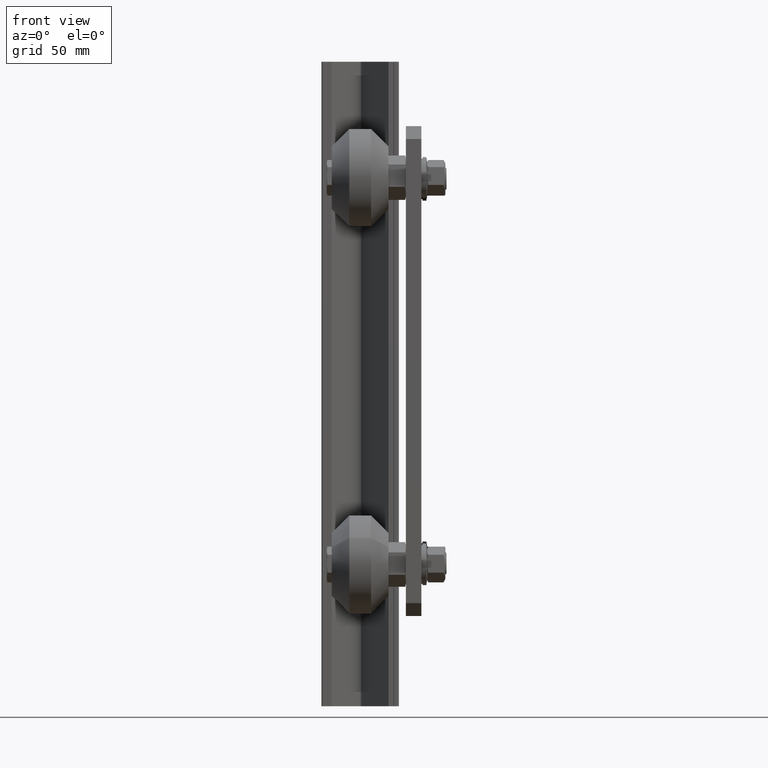
[diagram: clean part render]
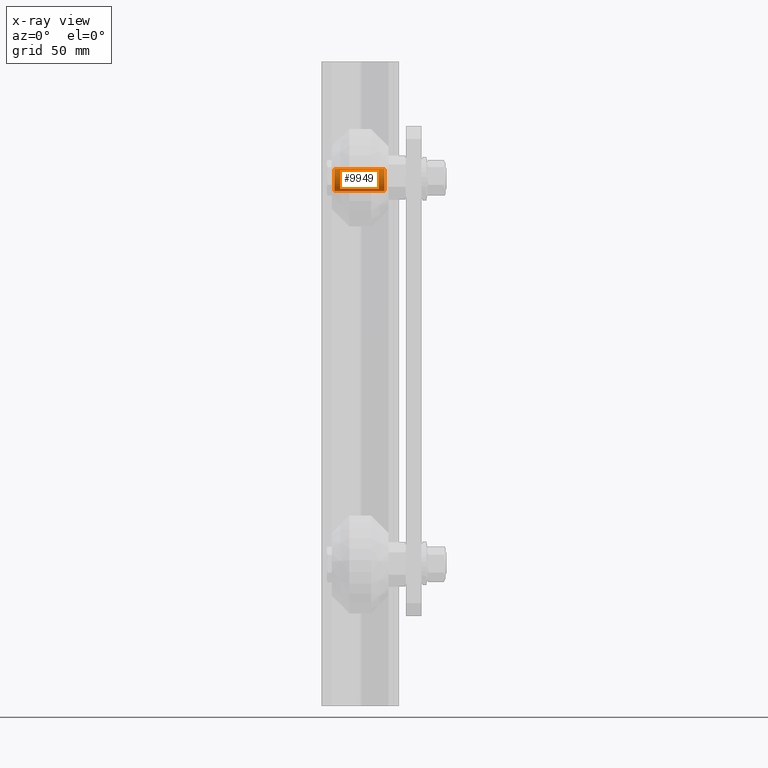
[diagram: x-ray — body ghosted, one internal face saturated and labeled with its STEP entity id]
A machine part, front view, then the same camera in x-ray: the body is ghosted and one INTERNAL B-rep face — a face not visible from any outside direction — is saturated and labeled: STEP entity #9949.
In plain terms, the highlighted cylindrical surface (bore or boss wall) has radius 8.5 mm, axis along (1, 0, 0).
Its self-contained STEP definition (entity closure, byte-faithful):
#550=CYLINDRICAL_SURFACE('',#10968,8.5);
#864=FACE_OUTER_BOUND('',#1413,.T.);
#1413=EDGE_LOOP('',(#7652,#7653,#7654,#7655));
#1945=CIRCLE('',#10967,8.5);
#1946=CIRCLE('',#10969,8.5);
#2700=LINE('',#15932,#3469);
#3469=VECTOR('',#12911,8.5);
#4238=VERTEX_POINT('',#15927);
#4239=VERTEX_POINT('',#15930);
#5476=EDGE_CURVE('',#4238,#4238,#1945,.T.);
#5477=EDGE_CURVE('',#4239,#4239,#1946,.T.);
#5478=EDGE_CURVE('',#4239,#4238,#2700,.T.);
#7652=ORIENTED_EDGE('',*,*,#5477,.F.);
#7653=ORIENTED_EDGE('',*,*,#5478,.T.);
#7654=ORIENTED_EDGE('',*,*,#5476,.T.);
#7655=ORIENTED_EDGE('',*,*,#5478,.F.);
#9949=ADVANCED_FACE('',(#864),#550,.T.);
#10967=AXIS2_PLACEMENT_3D('',#15928,#12905,#12906);
#10968=AXIS2_PLACEMENT_3D('',#15929,#12907,#12908);
#10969=AXIS2_PLACEMENT_3D('',#15931,#12909,#12910);
#12905=DIRECTION('center_axis',(1.,0.,0.));
#12906=DIRECTION('ref_axis',(0.,1.,0.));
#12907=DIRECTION('center_axis',(1.,0.,0.));
#12908=DIRECTION('ref_axis',(0.,1.,0.));
#12909=DIRECTION('center_axis',(1.,0.,0.));
#12910=DIRECTION('ref_axis',(0.,1.,0.));
#12911=DIRECTION('',(-1.,0.,0.));
#15927=CARTESIAN_POINT('',(6.,-8.5,-1.04094977927525E-15));
#15928=CARTESIAN_POINT('Origin',(6.,0.,0.));
#15929=CARTESIAN_POINT('Origin',(25.5,0.,0.));
#15930=CARTESIAN_POINT('',(45.,-8.5,-1.04094977927525E-15));
#15931=CARTESIAN_POINT('Origin',(45.,0.,0.));
#15932=CARTESIAN_POINT('',(25.5,-8.5,-1.04094977927525E-15));